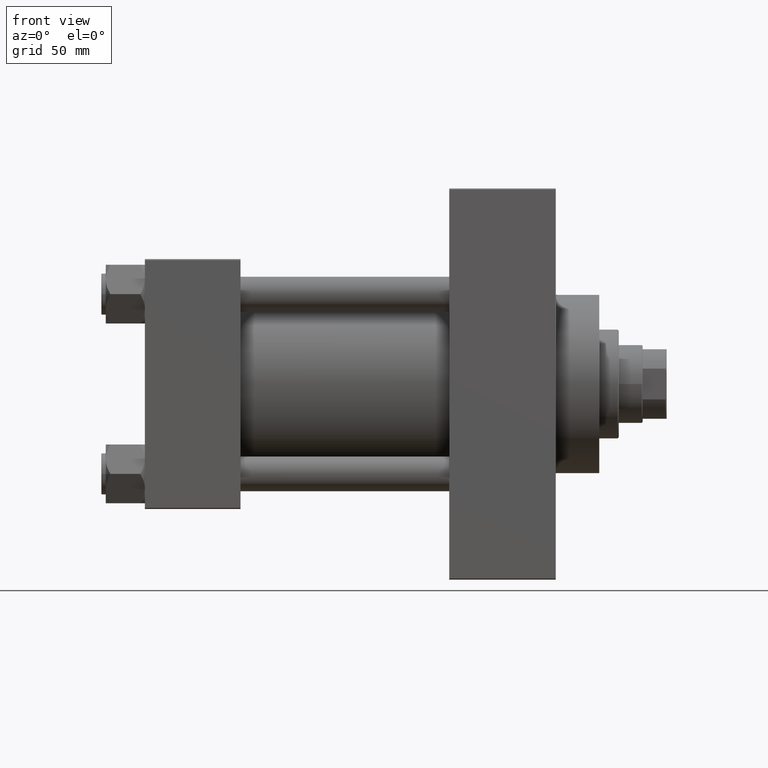
[diagram: clean part render]
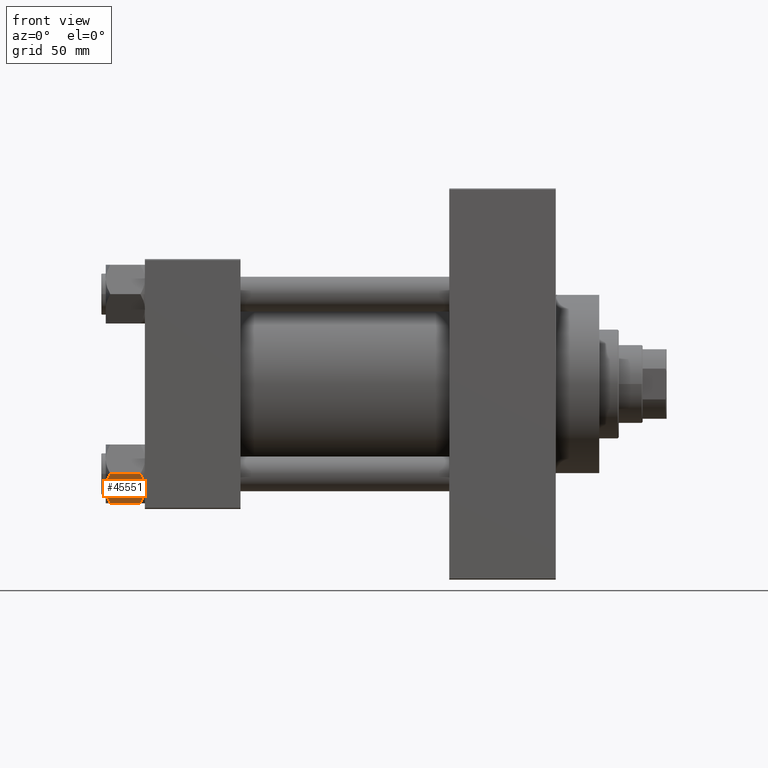
[diagram: same view with one face highlighted and labeled with its STEP entity id]
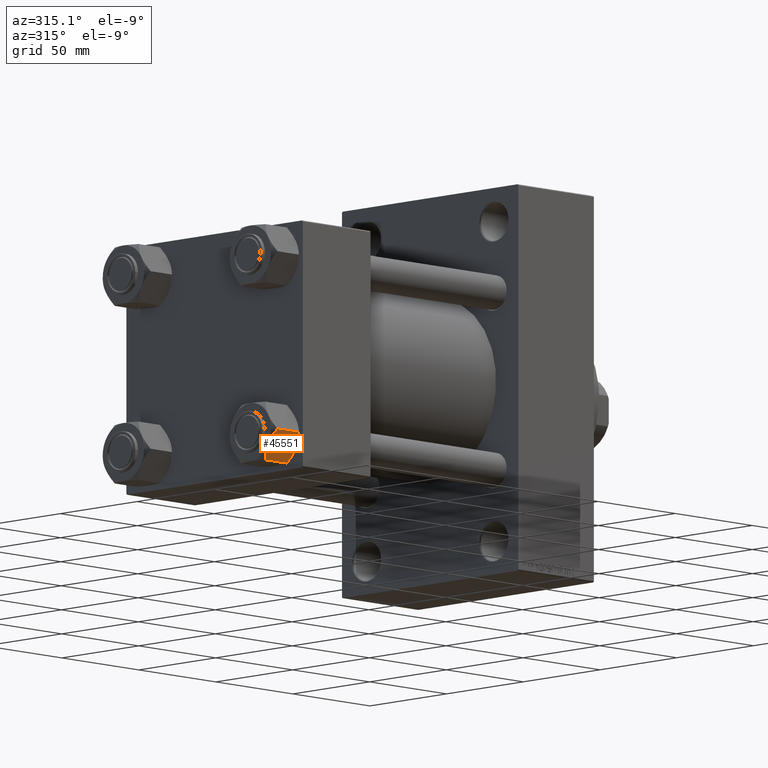
[diagram: same view with one face highlighted and labeled with its STEP entity id]
A machine part, front view. The second image highlights one B-rep face of the part: STEP entity #45551.
A second angle (auxiliary view) of the same face is appended — the face is thin or edge-on in the first view.
In plain terms, the highlighted planar face has unit normal (0, 0.866, 0.5).
Its self-contained STEP definition (entity closure, byte-faithful):
#958 = ORIENTED_EDGE ( 'NONE', *, *, #8927, .F. ) ;
#2004 = CARTESIAN_POINT ( 'NONE',  ( 11.71500000000000341, -6.763658403556471299, 0.000000000000000000 ) ) ;
#2071 = B_SPLINE_CURVE_WITH_KNOTS ( 'NONE', 3,
 ( #2004, #16690, #27778, #28247, #24168, #38847, #5854, #2245 ),
 .UNSPECIFIED., .F., .F.,
 ( 4, 2, 2, 4 ),
 ( 0.007890825462474425692, 0.01181022244528553977, 0.01376992093669109768, 0.01572961942809665559 ),
 .UNSPECIFIED. ) ;
#2245 = CARTESIAN_POINT ( 'NONE',  ( 15.52647173767732980, -0.1619957022865074481, -2.000000000000000000 ) ) ;
#2297 = VERTEX_POINT ( 'NONE', #8600 ) ;
#2588 = CARTESIAN_POINT ( 'NONE',  ( 15.62000000000000455, -1.379485931020374819E-15, -16.00000000000000000 ) ) ;
#3027 = PLANE ( 'NONE',  #35382 ) ;
#4736 = CARTESIAN_POINT ( 'NONE',  ( 14.92760668674625535, -1.199260397376455067, -16.58801072835992585 ) ) ;
#5075 = CARTESIAN_POINT ( 'NONE',  ( 10.40215497533437450, -9.037572688741349225, -17.80281335400754372 ) ) ;
#5854 = CARTESIAN_POINT ( 'NONE',  ( 15.22736220980736022, -0.6800686015852294153, -1.706311779141445495 ) ) ;
#6721 = VERTEX_POINT ( 'NONE', #21766 ) ;
#7562 = LINE ( 'NONE', #44181, #26155 ) ;
#8600 = CARTESIAN_POINT ( 'NONE',  ( 15.52647173767732980, -0.1619957022865074481, -16.00000000000000000 ) ) ;
#8668 = ORIENTED_EDGE ( 'NONE', *, *, #45241, .F. ) ;
#8671 = CARTESIAN_POINT ( 'NONE',  ( 7.810000000000002274, -13.52731680711293372, -1.999999999999998224 ) ) ;
#8693 = CARTESIAN_POINT ( 'NONE',  ( 8.506059550806615022, -12.32170630002230638, -16.56553707812499709 ) ) ;
#8927 = EDGE_CURVE ( 'NONE', #2297, #31460, #15862, .T. ) ;
#9756 = ORIENTED_EDGE ( 'NONE', *, *, #46424, .F. ) ;
#9908 = CARTESIAN_POINT ( 'NONE',  ( 11.38181071908714515, -7.340759166634874155, 7.741881137904304113E-16 ) ) ;
#10033 = DIRECTION ( 'NONE',  ( -0.5000000000000002220, -0.8660254037844384856, 0.000000000000000000 ) ) ;
#10476 = VECTOR ( 'NONE', #44287, 1000.000000000000000 ) ;
#10500 = DIRECTION ( 'NONE',  ( -0.000000000000000000, -0.000000000000000000, 1.000000000000000000 ) ) ;
#10864 = CARTESIAN_POINT ( 'NONE',  ( 9.114548888011784200, -11.26777185211904353, -0.9142282604026938930 ) ) ;
#11240 = ORIENTED_EDGE ( 'NONE', *, *, #35720, .T. ) ;
#11364 = ORIENTED_EDGE ( 'NONE', *, *, #47492, .F. ) ;
#11812 = EDGE_CURVE ( 'NONE', #39852, #45137, #7562, .T. ) ;
#13907 = DIRECTION ( 'NONE',  ( -0.5000000000000002220, -0.8660254037844384856, 0.000000000000000000 ) ) ;
#13986 = CARTESIAN_POINT ( 'NONE',  ( 7.903528262322674358, -13.36532110482643176, -2.000000000000000000 ) ) ;
#15204 = CARTESIAN_POINT ( 'NONE',  ( 9.124083218049241495, -11.25125790807804016, -17.05261278537718539 ) ) ;
#15335 = CARTESIAN_POINT ( 'NONE',  ( 14.31545111198821729, -2.259544954993898624, -17.08577173959729834 ) ) ;
#15563 = EDGE_CURVE ( 'NONE', #31460, #6721, #43687, .T. ) ;
#15573 = CARTESIAN_POINT ( 'NONE',  ( 12.38621571200405569, -5.601078687526932498, -17.94910618364698252 ) ) ;
#15862 = B_SPLINE_CURVE_WITH_KNOTS ( 'NONE', 3,
 ( #26647, #4736, #15335, #23034, #16041, #15573, #44735, #38196 ),
 .UNSPECIFIED., .F., .F.,
 ( 4, 2, 2, 4 ),
 ( 4.472842641901889415E-07, 0.003945636373369311792, 0.005918230917921871344, 0.007890825462474430896 ),
 .UNSPECIFIED. ) ;
#16041 = CARTESIAN_POINT ( 'NONE',  ( 13.04337073483127973, -4.462852799541088267, -17.75691532989870325 ) ) ;
#16101 = VERTEX_POINT ( 'NONE', #41146 ) ;
#16690 = CARTESIAN_POINT ( 'NONE',  ( 12.37702203890362540, -5.617002596445055396, 1.097754699641572845E-15 ) ) ;
#17717 = DIRECTION ( 'NONE',  ( -0.8660254037844385966, 0.5000000000000003331, 0.000000000000000000 ) ) ;
#18296 = DIRECTION ( 'NONE',  ( -0.5000000000000002220, -0.8660254037844384856, 0.000000000000000000 ) ) ;
#18391 = DIRECTION ( 'NONE',  ( 0.5000000000000002220, 0.8660254037844384856, -0.000000000000000000 ) ) ;
#19143 = EDGE_CURVE ( 'NONE', #34828, #43412, #2071, .T. ) ;
#19284 = CARTESIAN_POINT ( 'NONE',  ( 15.52647173767732980, -0.1619957022865074481, -2.000000000000000000 ) ) ;
#19293 = CARTESIAN_POINT ( 'NONE',  ( 11.05297796109637964, -7.910314210667883650, -18.00000000000000000 ) ) ;
#19763 = CARTESIAN_POINT ( 'NONE',  ( 8.202637790192644829, -12.84724820552770908, -16.29368822085855228 ) ) ;
#20741 = VECTOR ( 'NONE', #10500, 1000.000000000000000 ) ;
#21682 = CARTESIAN_POINT ( 'NONE',  ( 11.04378428799594936, -7.926238119586006547, -0.05089381635301404999 ) ) ;
#21766 = CARTESIAN_POINT ( 'NONE',  ( 7.903528262322674358, -13.36532110482643176, -16.00000000000000000 ) ) ;
#21799 = CARTESIAN_POINT ( 'NONE',  ( 7.810000000000002274, -13.52731680711293372, -18.00000000000000000 ) ) ;
#21914 = LINE ( 'NONE', #40695, #39233 ) ;
#21923 = CARTESIAN_POINT ( 'NONE',  ( 8.502393313253756801, -12.32805640973649197, -1.411989271640069044 ) ) ;
#22394 = CARTESIAN_POINT ( 'NONE',  ( 11.71500000000000341, -6.763658403556471299, -18.00000000000000000 ) ) ;
#22663 = CARTESIAN_POINT ( 'NONE',  ( 11.71500000000000341, -6.763658403556471299, -18.00000000000000000 ) ) ;
#22870 = CARTESIAN_POINT ( 'NONE',  ( 7.903528262322674358, -13.36532110482643176, -2.000000000000000000 ) ) ;
#23034 = CARTESIAN_POINT ( 'NONE',  ( 13.36540581434587516, -3.905071680002325962, -17.61639331488793303 ) ) ;
#23523 = CARTESIAN_POINT ( 'NONE',  ( 15.62000000000000455, -1.379485931020374819E-15, -16.00000000000000000 ) ) ;
#23655 = CARTESIAN_POINT ( 'NONE',  ( 15.62000000000000455, -1.379485931020374819E-15, -1.999999999999998224 ) ) ;
#24168 = CARTESIAN_POINT ( 'NONE',  ( 14.30591678195076355, -2.276058899034900662, -0.9473872146228133895 ) ) ;
#24320 = B_SPLINE_CURVE_WITH_KNOTS ( 'NONE', 3,
 ( #13986, #21923, #10864, #28676, #28913, #21682, #9908, #25550 ),
 .UNSPECIFIED., .F., .F.,
 ( 4, 2, 2, 4 ),
 ( 4.472842641876105202E-07, 0.003945636373369308322, 0.005918230917921867007, 0.007890825462474425692 ),
 .UNSPECIFIED. ) ;
#25550 = CARTESIAN_POINT ( 'NONE',  ( 11.71500000000000341, -6.763658403556471299, 0.000000000000000000 ) ) ;
#26155 = VECTOR ( 'NONE', #18391, 1000.000000000000114 ) ;
#26647 = CARTESIAN_POINT ( 'NONE',  ( 15.52647173767732980, -0.1619957022865074481, -16.00000000000000000 ) ) ;
#27778 = CARTESIAN_POINT ( 'NONE',  ( 13.02784502466562699, -4.489744118371590709, -0.1971866459924545845 ) ) ;
#28119 = LINE ( 'NONE', #2588, #31566 ) ;
#28247 = CARTESIAN_POINT ( 'NONE',  ( 13.99051971937274352, -2.822342635978011938, -0.7317196846281139866 ) ) ;
#28676 = CARTESIAN_POINT ( 'NONE',  ( 10.06459418565412456, -9.622245127110611307, -0.3836066851120584209 ) ) ;
#28913 = CARTESIAN_POINT ( 'NONE',  ( 10.38662926516871998, -9.064464007571853443, -0.2430846701012968625 ) ) ;
#29825 = LINE ( 'NONE', #43817, #10476 ) ;
#30367 = CARTESIAN_POINT ( 'NONE',  ( 9.439480280627259745, -10.70497417113492666, -17.26828031537187869 ) ) ;
#30587 = EDGE_LOOP ( 'NONE', ( #8668, #11240, #35029, #43998, #37127, #40151, #11364, #9756, #34392, #958 ) ) ;
#31460 = VERTEX_POINT ( 'NONE', #22394 ) ;
#31566 = VECTOR ( 'NONE', #13907, 1000.000000000000114 ) ;
#33543 = DIRECTION ( 'NONE',  ( 0.5000000000000002220, 0.8660254037844384856, -0.000000000000000000 ) ) ;
#34392 = ORIENTED_EDGE ( 'NONE', *, *, #15563, .F. ) ;
#34828 = VERTEX_POINT ( 'NONE', #41836 ) ;
#35029 = ORIENTED_EDGE ( 'NONE', *, *, #42085, .F. ) ;
#35382 = AXIS2_PLACEMENT_3D ( 'NONE', #35547, #17717, #10033 ) ;
#35547 = CARTESIAN_POINT ( 'NONE',  ( 15.62000000000000455, -1.379485931020374819E-15, -18.00000000000000000 ) ) ;
#35720 = EDGE_CURVE ( 'NONE', #45527, #38570, #29825, .T. ) ;
#36975 = LINE ( 'NONE', #21799, #20741 ) ;
#37127 = ORIENTED_EDGE ( 'NONE', *, *, #45822, .F. ) ;
#38196 = CARTESIAN_POINT ( 'NONE',  ( 11.71500000000000341, -6.763658403556471299, -18.00000000000000000 ) ) ;
#38570 = VERTEX_POINT ( 'NONE', #23655 ) ;
#38847 = CARTESIAN_POINT ( 'NONE',  ( 14.92394044919338292, -1.205610507090636219, -1.434462921875003349 ) ) ;
#39233 = VECTOR ( 'NONE', #18296, 1000.000000000000114 ) ;
#39852 = VERTEX_POINT ( 'NONE', #8671 ) ;
#40151 = ORIENTED_EDGE ( 'NONE', *, *, #11812, .F. ) ;
#40695 = CARTESIAN_POINT ( 'NONE',  ( 15.62000000000000455, -1.379485931020374819E-15, -16.00000000000000000 ) ) ;
#41146 = CARTESIAN_POINT ( 'NONE',  ( 7.810000000000002274, -13.52731680711293372, -16.00000000000000000 ) ) ;
#41836 = CARTESIAN_POINT ( 'NONE',  ( 11.71500000000000341, -6.763658403556471299, 0.000000000000000000 ) ) ;
#42085 = EDGE_CURVE ( 'NONE', #43412, #38570, #43686, .T. ) ;
#43412 = VERTEX_POINT ( 'NONE', #19284 ) ;
#43686 = LINE ( 'NONE', #44646, #43753 ) ;
#43687 = B_SPLINE_CURVE_WITH_KNOTS ( 'NONE', 3,
 ( #22663, #19293, #5075, #30367, #15204, #8693, #19763, #44602 ),
 .UNSPECIFIED., .F., .F.,
 ( 4, 2, 2, 4 ),
 ( 0.007890825462474430896, 0.01181022244528554324, 0.01376992093669110115, 0.01572961942809665906 ),
 .UNSPECIFIED. ) ;
#43753 = VECTOR ( 'NONE', #33543, 1000.000000000000114 ) ;
#43817 = CARTESIAN_POINT ( 'NONE',  ( 15.62000000000000455, -1.379485931020374819E-15, -18.00000000000000000 ) ) ;
#43998 = ORIENTED_EDGE ( 'NONE', *, *, #19143, .F. ) ;
#44181 = CARTESIAN_POINT ( 'NONE',  ( 15.62000000000000455, -1.379485931020374819E-15, -1.999999999999998224 ) ) ;
#44287 = DIRECTION ( 'NONE',  ( -0.000000000000000000, -0.000000000000000000, 1.000000000000000000 ) ) ;
#44602 = CARTESIAN_POINT ( 'NONE',  ( 7.903528262322674358, -13.36532110482643176, -16.00000000000000000 ) ) ;
#44646 = CARTESIAN_POINT ( 'NONE',  ( 15.62000000000000455, -1.379485931020374819E-15, -1.999999999999998224 ) ) ;
#44735 = CARTESIAN_POINT ( 'NONE',  ( 12.04818928091285279, -6.186557640478066666, -17.99999999999999645 ) ) ;
#45137 = VERTEX_POINT ( 'NONE', #22870 ) ;
#45241 = EDGE_CURVE ( 'NONE', #45527, #2297, #21914, .T. ) ;
#45527 = VERTEX_POINT ( 'NONE', #23523 ) ;
#45551 = ADVANCED_FACE ( 'NONE', ( #46414 ), #3027, .F. ) ;
#45822 = EDGE_CURVE ( 'NONE', #45137, #34828, #24320, .T. ) ;
#46414 = FACE_OUTER_BOUND ( 'NONE', #30587, .T. ) ;
#46424 = EDGE_CURVE ( 'NONE', #6721, #16101, #28119, .T. ) ;
#47492 = EDGE_CURVE ( 'NONE', #16101, #39852, #36975, .T. ) ;